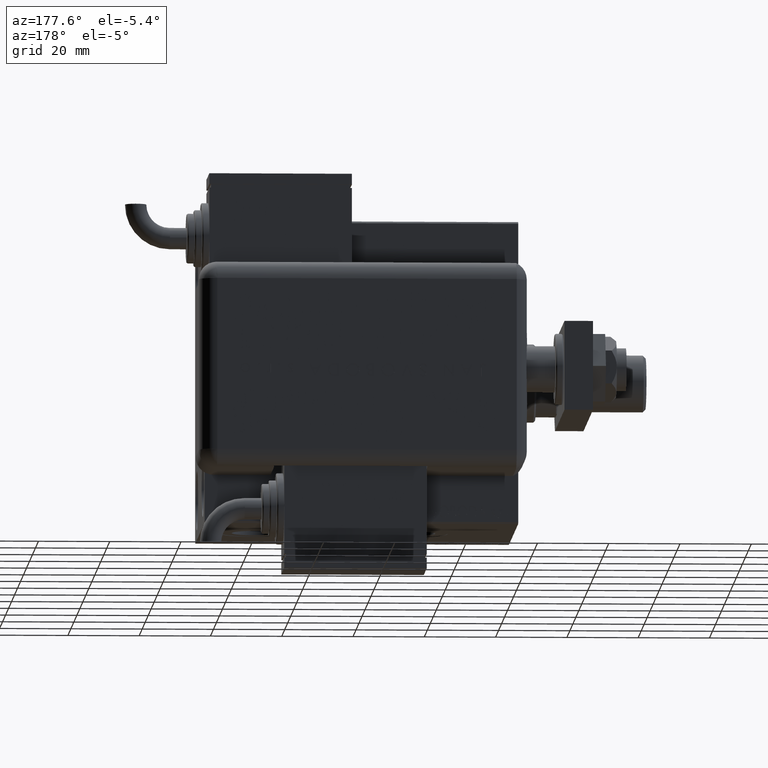
[diagram: clean part render]
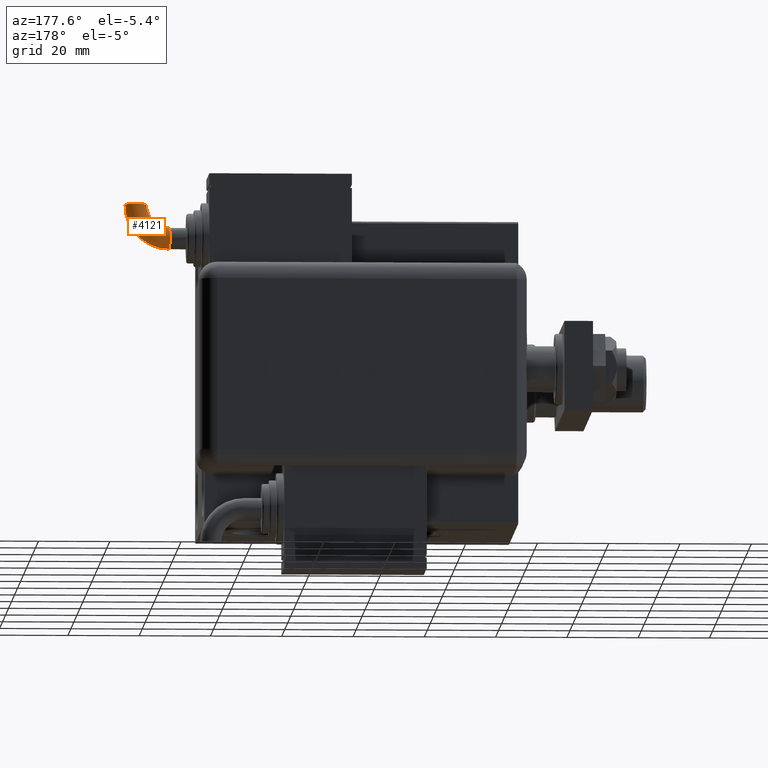
[diagram: same view with one face highlighted and labeled with its STEP entity id]
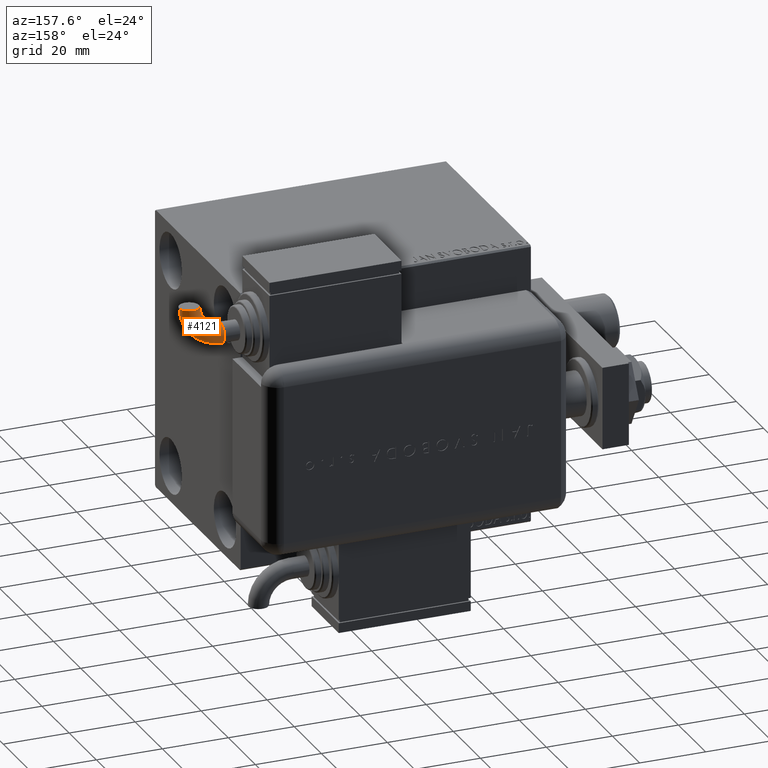
[diagram: same view with one face highlighted and labeled with its STEP entity id]
A machine part, auxiliary view. The second image highlights one B-rep face of the part: STEP entity #4121.
A second angle (auxiliary view) of the same face is appended — the face is thin or edge-on in the first view.
In plain terms, the highlighted toroidal blend (fillet) surface has major radius 9.5072 mm and minor (blend) radius 3 mm.
Its self-contained STEP definition (entity closure, byte-faithful):
#2835 = CARTESIAN_POINT ( 'NONE',  ( -30.75201677704342274, 2.118407575146589373E-14, -2.999999999999997335 ) ) ;
#4121 = ADVANCED_FACE ( 'NONE', ( #26146 ), #43330, .T. ) ;
#4183 = DIRECTION ( 'NONE',  ( 0.000000000000000000, 0.000000000000000000, 1.000000000000000000 ) ) ;
#7973 = ORIENTED_EDGE ( 'NONE', *, *, #48378, .T. ) ;
#10466 = DIRECTION ( 'NONE',  ( 0.000000000000000000, 0.000000000000000000, 1.000000000000000000 ) ) ;
#10939 = ORIENTED_EDGE ( 'NONE', *, *, #32774, .T. ) ;
#16840 = CARTESIAN_POINT ( 'NONE',  ( -30.75201677704342274, 2.081668171172168513E-14, 0.000000000000000000 ) ) ;
#17598 = CIRCLE ( 'NONE', #33168, 12.50721151927396058 ) ;
#17601 = DIRECTION ( 'NONE',  ( 0.000000000000000000, 0.000000000000000000, 1.000000000000000000 ) ) ;
#19172 = VERTEX_POINT ( 'NONE', #2835 ) ;
#21593 = DIRECTION ( 'NONE',  ( 1.000000000000000000, 0.000000000000000000, 0.000000000000000000 ) ) ;
#21876 = CARTESIAN_POINT ( 'NONE',  ( -30.75201677704342274, -9.507211519273942812, 0.000000000000000000 ) ) ;
#22324 = VERTEX_POINT ( 'NONE', #44984 ) ;
#22913 = DIRECTION ( 'NONE',  ( -7.402363701065945741E-06, 0.9999999999726024713, 0.000000000000000000 ) ) ;
#22929 = EDGE_CURVE ( 'NONE', #19172, #56288, #31867, .T. ) ;
#23717 = VERTEX_POINT ( 'NONE', #36918 ) ;
#24203 = AXIS2_PLACEMENT_3D ( 'NONE', #33625, #10466, #46422 ) ;
#26146 = FACE_OUTER_BOUND ( 'NONE', #33688, .T. ) ;
#26237 = CIRCLE ( 'NONE', #46609, 2.999999999999996003 ) ;
#29387 = CARTESIAN_POINT ( 'NONE',  ( -30.75201677704342274, 2.081668171172168513E-14, 0.000000000000000000 ) ) ;
#29495 = CARTESIAN_POINT ( 'NONE',  ( -43.25922829597471519, -9.507304102202486007, 0.000000000000000000 ) ) ;
#29577 = ORIENTED_EDGE ( 'NONE', *, *, #22929, .F. ) ;
#31867 = CIRCLE ( 'NONE', #39627, 2.999999999999996003 ) ;
#32055 = DIRECTION ( 'NONE',  ( -0.9999999999726024713, -7.402363701169985951E-06, 0.000000000000000000 ) ) ;
#32774 = EDGE_CURVE ( 'NONE', #23717, #47012, #49613, .T. ) ;
#33168 = AXIS2_PLACEMENT_3D ( 'NONE', #45916, #4183, #21593 ) ;
#33625 = CARTESIAN_POINT ( 'NONE',  ( -30.75201677704342274, -9.507211519273942812, -3.673940397442055924E-16 ) ) ;
#33688 = EDGE_LOOP ( 'NONE', ( #41047, #29577, #52151, #7973, #10939 ) ) ;
#34279 = EDGE_CURVE ( 'NONE', #56288, #47012, #17598, .T. ) ;
#34884 = CIRCLE ( 'NONE', #24203, 6.507211519273966793 ) ;
#36918 = CARTESIAN_POINT ( 'NONE',  ( -37.25922829613910636, -9.507259688020280208, -3.673940397551225891E-16 ) ) ;
#39627 = AXIS2_PLACEMENT_3D ( 'NONE', #16840, #39968, #57334 ) ;
#39968 = DIRECTION ( 'NONE',  ( 1.000000000000000000, 1.025520576932673761E-15, 0.000000000000000000 ) ) ;
#41047 = ORIENTED_EDGE ( 'NONE', *, *, #34279, .F. ) ;
#43330 = TOROIDAL_SURFACE ( 'NONE', #51115, 9.507211519273964129, 2.999999999999996891 ) ;
#43977 = DIRECTION ( 'NONE',  ( 1.000000000000000000, 1.025520576932673761E-15, 0.000000000000000000 ) ) ;
#44984 = CARTESIAN_POINT ( 'NONE',  ( -30.75201677704341918, -2.999999999999976463, -3.673940397442056910E-16 ) ) ;
#45011 = DIRECTION ( 'NONE',  ( 1.000000000000000000, 0.000000000000000000, 0.000000000000000000 ) ) ;
#45916 = CARTESIAN_POINT ( 'NONE',  ( -30.75201677704342274, -9.507211519273942812, 0.000000000000000000 ) ) ;
#46422 = DIRECTION ( 'NONE',  ( 1.000000000000000000, 0.000000000000000000, 0.000000000000000000 ) ) ;
#46609 = AXIS2_PLACEMENT_3D ( 'NONE', #29387, #43977, #53701 ) ;
#47012 = VERTEX_POINT ( 'NONE', #29495 ) ;
#48378 = EDGE_CURVE ( 'NONE', #22324, #23717, #34884, .T. ) ;
#48657 = AXIS2_PLACEMENT_3D ( 'NONE', #59738, #22913, #32055 ) ;
#49613 = CIRCLE ( 'NONE', #48657, 2.999999999999996891 ) ;
#49972 = EDGE_CURVE ( 'NONE', #22324, #19172, #26237, .T. ) ;
#51115 = AXIS2_PLACEMENT_3D ( 'NONE', #21876, #17601, #45011 ) ;
#52151 = ORIENTED_EDGE ( 'NONE', *, *, #49972, .F. ) ;
#53701 = DIRECTION ( 'NONE',  ( -1.156482317317872908E-15, 1.000000000000000000, 0.000000000000000000 ) ) ;
#56288 = VERTEX_POINT ( 'NONE', #59801 ) ;
#57334 = DIRECTION ( 'NONE',  ( -1.156482317317872908E-15, 1.000000000000000000, 0.000000000000000000 ) ) ;
#59738 = CARTESIAN_POINT ( 'NONE',  ( -40.25922829605691078, -9.507281895111381331, 0.000000000000000000 ) ) ;
#59801 = CARTESIAN_POINT ( 'NONE',  ( -30.75201677704342629, 3.000000000000017319, 0.000000000000000000 ) ) ;